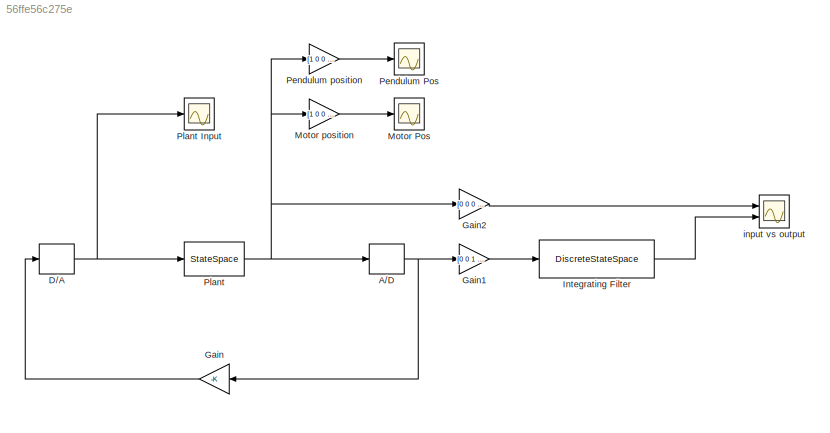
MODEL slx_56ffe56c275e
KIND model
CONFIG AbsTol = auto
CONFIG EnableMultiTasking = off
CONFIG FixedStep = T
CONFIG MaxStep = auto
CONFIG MinStep = auto
CONFIG RelTol = 1e-3
CONFIG SampleTimeConstraint = Unconstrained
CONFIG Solver = FixedStepAuto
CONFIG SolverName = FixedStepAuto
CONFIG StartTime = 0.0
CONFIG StopTime = 2
BLOCK [ZeroOrderHold] A//D
  SampleTime = T
BLOCK [ZeroOrderHold] D//A
  SampleTime = T
BLOCK [Gain] Gain
  Gain = -K
  Multiplication = Matrix(K*u)
  OutDataTypeStr = Inherit: Inherit via internal rule
  ParamDataTypeStr = Inherit: Inherit via internal rule
  SaturateOnIntegerOverflow = off
BLOCK [Gain] Gain1
  Gain = [0 0 1 0]
  Multiplication = Matrix(K*u)
  OutDataTypeStr = Inherit: Inherit via internal rule
  ParamDataTypeStr = Inherit: Inherit via internal rule
  SaturateOnIntegerOverflow = off
BLOCK [Gain] Gain2
  Gain = [0 0 0 1]
  Multiplication = Matrix(K*u)
  OutDataTypeStr = Inherit: Inherit via internal rule
  ParamDataTypeStr = Inherit: Inherit via internal rule
  SaturateOnIntegerOverflow = off
BLOCK [DiscreteStateSpace] Integrating Filter
  A = Af
  B = Bf
  C = Cf
  D = Df
  SampleTime = T
BLOCK [Scope] Motor Pos
  NumInputPorts = 1
  Ports = [1]
  ScopeSpecificationString = Simulink.scopes.TimeScopeBlockCfg('CurrentConfiguration', extmgr.ConfigurationSet(extmgr.Configuration('Core','General UI',true),extmgr.Configuration('Core','Source UI',true),extmgr.Configuration('Sources','WiredSimulink',true,'DataLoggingVariableName','ScopeData1'),extmgr.Configuration('Visuals','Time Domain',true,'SerializedDisplays',{struct('MinYLimReal','-0.12657','MaxYLimReal','0.20295','YLab...<+1447ch>
BLOCK [Gain] Motor position
  Gain = [1 0 0 0]
  Multiplication = Matrix(K*u)
  OutDataTypeStr = Inherit: Inherit via internal rule
  ParamDataTypeStr = Inherit: Inherit via internal rule
  SaturateOnIntegerOverflow = off
BLOCK [Scope] Pendulum Pos
  NumInputPorts = 1
  Ports = [1]
  ScopeSpecificationString = Simulink.scopes.TimeScopeBlockCfg('CurrentConfiguration', extmgr.ConfigurationSet(extmgr.Configuration('Core','General UI',true),extmgr.Configuration('Core','Source UI',true),extmgr.Configuration('Sources','WiredSimulink',true),extmgr.Configuration('Visuals','Time Domain',true,'SerializedDisplays',{struct('MinYLimReal','-0.12657','MaxYLimReal','0.20295','YLabelReal','','MinYLimMag','0.00000','MaxY...<+1413ch>
BLOCK [Gain] Pendulum position
  Gain = [1 0 0 0]
  Multiplication = Matrix(K*u)
  OutDataTypeStr = Inherit: Inherit via internal rule
  ParamDataTypeStr = Inherit: Inherit via internal rule
  SaturateOnIntegerOverflow = off
BLOCK [StateSpace] Plant
  A = A
  B = B
  C = eye(4)
  D = zeros(4,1)
  Ports = [1, 1]
  X0 = x1
BLOCK [Scope] Plant Input 
  NumInputPorts = 1
  Ports = [1]
  ScopeSpecificationString = Simulink.scopes.TimeScopeBlockCfg('CurrentConfiguration', extmgr.ConfigurationSet(extmgr.Configuration('Core','General UI',true),extmgr.Configuration('Core','Source UI',true),extmgr.Configuration('Sources','WiredSimulink',true,'DataLoggingVariableName','ScopeData1'),extmgr.Configuration('Visuals','Time Domain',true,'SerializedDisplays',{struct('MinYLimReal','-5.77333','MaxYLimReal','1.83791','YLab...<+1438ch>
BLOCK [Scope] input vs output 
  NumInputPorts = 2
  Ports = [2]
  ScopeSpecificationString = Simulink.scopes.TimeScopeBlockCfg('CurrentConfiguration', extmgr.ConfigurationSet(extmgr.Configuration('Core','General UI',true),extmgr.Configuration('Core','Source UI',true),extmgr.Configuration('Sources','WiredSimulink',true,'DataLoggingVariableName','ScopeData2'),extmgr.Configuration('Visuals','Time Domain',true,'SerializedDisplays',{struct('MinYLimReal','-344.05737','MaxYLimReal','153.85908','...<+1475ch>
NET A//D:1 -> Gain1:1, Gain:1
NET D//A:1 -> Plant Input :1, Plant:1
LINE Gain1:1 -> Integrating Filter:1
LINE Gain2:1 -> input vs output :1
LINE Gain:1 -> D//A:1
LINE Integrating Filter:1 -> input vs output :2
LINE Motor position:1 -> Motor Pos:1
LINE Pendulum position:1 -> Pendulum Pos:1
NET Plant:1 -> A//D:1, Gain2:1, Motor position:1, Pendulum position:1
note: NET lines group one-source signal fan-out (src -> all destinations, sorted); 1:1 wires keep LINE
